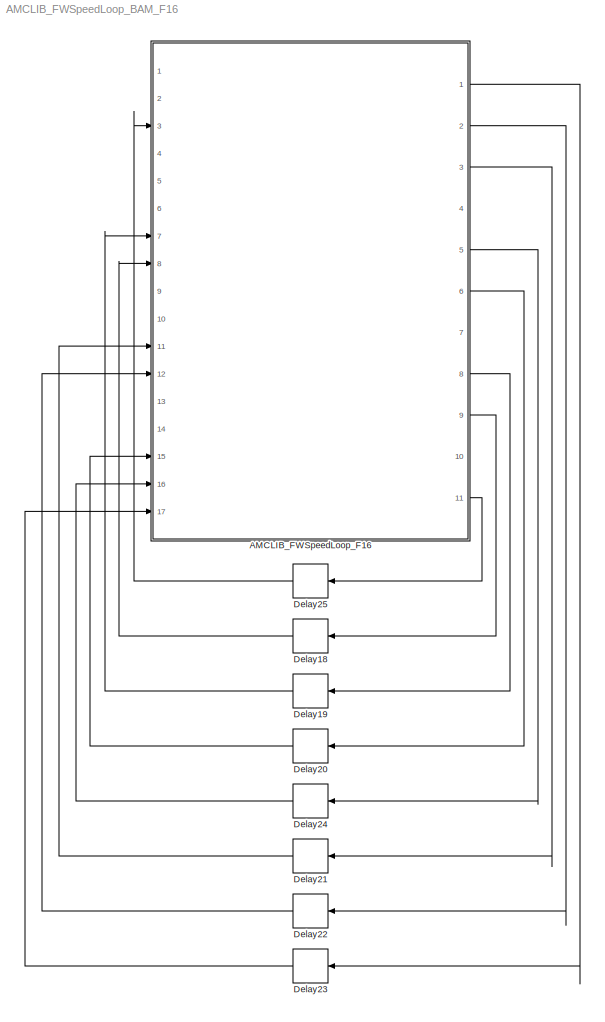
MODEL AMCLIB_FWSpeedLoop_BAM_F16
KIND model
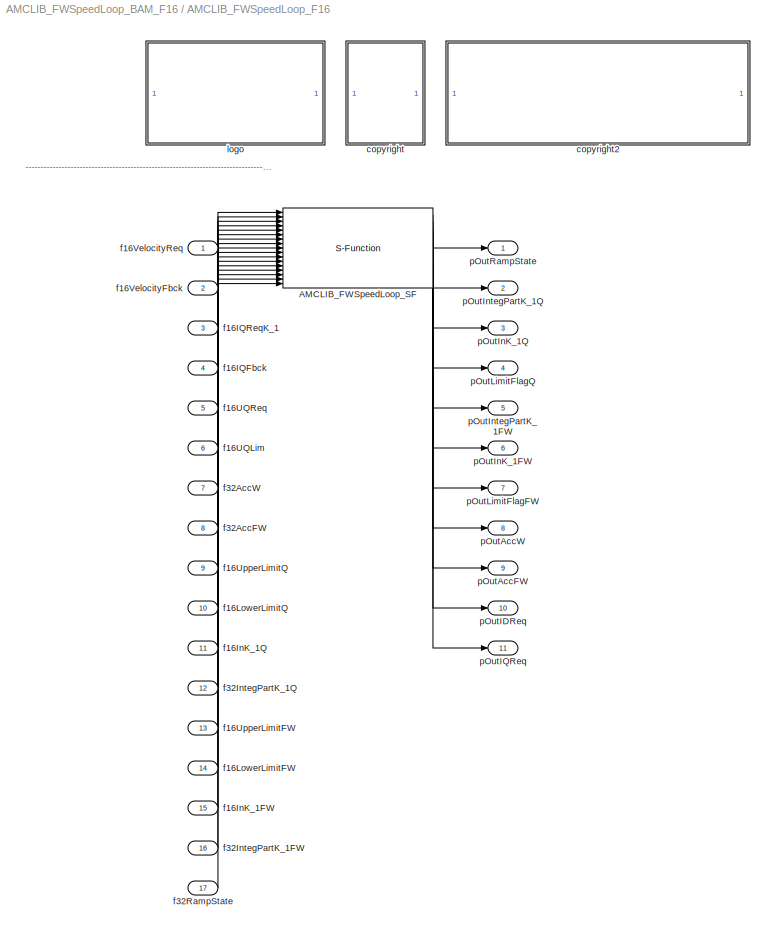
BLOCK [SubSystem] AMCLIB_FWSpeedLoop_F16
  Ports = [17, 11]
  RequestExecContextInheritance = off
  SID = 1
BLOCK [S-Function] AMCLIB_FWSpeedLoop_F16/AMCLIB_FWSpeedLoop_SF
  EnableBusSupport = off
  FunctionName = AMCLIB_FWSpeedLoop_SF_F16
  Parameters = u16NSamplesW,u16NSamplesFW,f16PropGainQ,s16PropGainShiftQ,f16IntegGainQ,s16IntegGainShiftQ,f16PropGainFW,s16PropGainShiftFW,f16IntegGainFW,s16IntegGainShiftFW,f32RampUp,f32RampDown
  Ports = [17, 11]
  SID = 4
BLOCK [SubSystem] AMCLIB_FWSpeedLoop_F16/<copyright redacted>
  Ports = []
  RequestExecContextInheritance = off
  SID = 37
BLOCK [SubSystem] AMCLIB_FWSpeedLoop_F16/copyright2
  Ports = []
  RequestExecContextInheritance = off
  SID = 40
BLOCK [Inport] AMCLIB_FWSpeedLoop_F16/f16IQFbck
  IconDisplay = Port number
  Port = 4
  SID = 8
BLOCK [Inport] AMCLIB_FWSpeedLoop_F16/f16IQReqK_1
  IconDisplay = Port number
  Port = 3
  SID = 7
BLOCK [Inport] AMCLIB_FWSpeedLoop_F16/f16InK_1FW
  IconDisplay = Port number
  Port = 15
  SID = 19
BLOCK [Inport] AMCLIB_FWSpeedLoop_F16/f16InK_1Q
  IconDisplay = Port number
  Port = 11
  SID = 15
BLOCK [Inport] AMCLIB_FWSpeedLoop_F16/f16LowerLimitFW
  IconDisplay = Port number
  Port = 14
  SID = 18
BLOCK [Inport] AMCLIB_FWSpeedLoop_F16/f16LowerLimitQ
  IconDisplay = Port number
  Port = 10
  SID = 14
BLOCK [Inport] AMCLIB_FWSpeedLoop_F16/f16UQLim
  IconDisplay = Port number
  Port = 6
  SID = 10
BLOCK [Inport] AMCLIB_FWSpeedLoop_F16/f16UQReq
  IconDisplay = Port number
  Port = 5
  SID = 9
BLOCK [Inport] AMCLIB_FWSpeedLoop_F16/f16UpperLimitFW
  IconDisplay = Port number
  Port = 13
  SID = 17
BLOCK [Inport] AMCLIB_FWSpeedLoop_F16/f16UpperLimitQ
  IconDisplay = Port number
  Port = 9
  SID = 13
BLOCK [Inport] AMCLIB_FWSpeedLoop_F16/f16VelocityFbck
  IconDisplay = Port number
  Port = 2
  SID = 6
BLOCK [Inport] AMCLIB_FWSpeedLoop_F16/f16VelocityReq
  IconDisplay = Port number
  SID = 5
BLOCK [Inport] AMCLIB_FWSpeedLoop_F16/f32AccFW
  IconDisplay = Port number
  Port = 8
  SID = 12
BLOCK [Inport] AMCLIB_FWSpeedLoop_F16/f32AccW
  IconDisplay = Port number
  Port = 7
  SID = 11
BLOCK [Inport] AMCLIB_FWSpeedLoop_F16/f32IntegPartK_1FW
  IconDisplay = Port number
  Port = 16
  SID = 20
BLOCK [Inport] AMCLIB_FWSpeedLoop_F16/f32IntegPartK_1Q
  IconDisplay = Port number
  Port = 12
  SID = 16
BLOCK [Inport] AMCLIB_FWSpeedLoop_F16/f32RampState
  IconDisplay = Port number
  Port = 17
  SID = 21
BLOCK [SubSystem] AMCLIB_FWSpeedLoop_F16/logo
  Ports = []
  RequestExecContextInheritance = off
  SID = 33
BLOCK [Outport] AMCLIB_FWSpeedLoop_F16/pOutAccFW
  IconDisplay = Port number
  Port = 9
  SID = 30
BLOCK [Outport] AMCLIB_FWSpeedLoop_F16/pOutAccW
  IconDisplay = Port number
  Port = 8
  SID = 29
BLOCK [Outport] AMCLIB_FWSpeedLoop_F16/pOutIDReq
  IconDisplay = Port number
  Port = 10
  SID = 31
BLOCK [Outport] AMCLIB_FWSpeedLoop_F16/pOutIQReq
  IconDisplay = Port number
  Port = 11
  SID = 32
BLOCK [Outport] AMCLIB_FWSpeedLoop_F16/pOutInK_1FW
  IconDisplay = Port number
  Port = 6
  SID = 27
BLOCK [Outport] AMCLIB_FWSpeedLoop_F16/pOutInK_1Q
  IconDisplay = Port number
  Port = 3
  SID = 24
BLOCK [Outport] AMCLIB_FWSpeedLoop_F16/pOutIntegPartK_1FW
  IconDisplay = Port number
  Port = 5
  SID = 26
BLOCK [Outport] AMCLIB_FWSpeedLoop_F16/pOutIntegPartK_1Q
  IconDisplay = Port number
  Port = 2
  SID = 23
BLOCK [Outport] AMCLIB_FWSpeedLoop_F16/pOutLimitFlagFW
  IconDisplay = Port number
  Port = 7
  SID = 28
BLOCK [Outport] AMCLIB_FWSpeedLoop_F16/pOutLimitFlagQ
  IconDisplay = Port number
  Port = 4
  SID = 25
BLOCK [Outport] AMCLIB_FWSpeedLoop_F16/pOutRampState
  IconDisplay = Port number
  SID = 22
BLOCK [Delay] Delay18
  DelayLength = 1
  InitialCondition = 0
  InputPortMap = u0
  Ports = [1, 1]
  SID = 77
BLOCK [Delay] Delay19
  DelayLength = 1
  InitialCondition = 0
  InputPortMap = u0
  Ports = [1, 1]
  SID = 78
BLOCK [Delay] Delay20
  DelayLength = 1
  InitialCondition = 0
  InputPortMap = u0
  Ports = [1, 1]
  SID = 79
BLOCK [Delay] Delay21
  DelayLength = 1
  InitialCondition = 0
  InputPortMap = u0
  Ports = [1, 1]
  SID = 80
BLOCK [Delay] Delay22
  DelayLength = 1
  InitialCondition = 0
  InputPortMap = u0
  Ports = [1, 1]
  SID = 81
BLOCK [Delay] Delay23
  DelayLength = 1
  InitialCondition = 0
  InputPortMap = u0
  Ports = [1, 1]
  SID = 82
BLOCK [Delay] Delay24
  DelayLength = 1
  InitialCondition = 0
  InputPortMap = u0
  Ports = [1, 1]
  SID = 83
BLOCK [Delay] Delay25
  DelayLength = 1
  InitialCondition = 0
  InputPortMap = u0
  Ports = [1, 1]
  SID = 84
ANNOTATION AMCLIB_FWSpeedLoop_F16: ---------------------------------------------------------------------------------------------------------------------------------------------------------------------------------------------------
LINE AMCLIB_FWSpeedLoop_F16/AMCLIB_FWSpeedLoop_SF:1 -> AMCLIB_FWSpeedLoop_F16/pOutRampState:1
LINE AMCLIB_FWSpeedLoop_F16/AMCLIB_FWSpeedLoop_SF:10 -> AMCLIB_FWSpeedLoop_F16/pOutIDReq:1
LINE AMCLIB_FWSpeedLoop_F16/AMCLIB_FWSpeedLoop_SF:11 -> AMCLIB_FWSpeedLoop_F16/pOutIQReq:1
LINE AMCLIB_FWSpeedLoop_F16/AMCLIB_FWSpeedLoop_SF:2 -> AMCLIB_FWSpeedLoop_F16/pOutIntegPartK_1Q:1
LINE AMCLIB_FWSpeedLoop_F16/AMCLIB_FWSpeedLoop_SF:3 -> AMCLIB_FWSpeedLoop_F16/pOutInK_1Q:1
LINE AMCLIB_FWSpeedLoop_F16/AMCLIB_FWSpeedLoop_SF:4 -> AMCLIB_FWSpeedLoop_F16/pOutLimitFlagQ:1
LINE AMCLIB_FWSpeedLoop_F16/AMCLIB_FWSpeedLoop_SF:5 -> AMCLIB_FWSpeedLoop_F16/pOutIntegPartK_1FW:1
LINE AMCLIB_FWSpeedLoop_F16/AMCLIB_FWSpeedLoop_SF:6 -> AMCLIB_FWSpeedLoop_F16/pOutInK_1FW:1
LINE AMCLIB_FWSpeedLoop_F16/AMCLIB_FWSpeedLoop_SF:7 -> AMCLIB_FWSpeedLoop_F16/pOutLimitFlagFW:1
LINE AMCLIB_FWSpeedLoop_F16/AMCLIB_FWSpeedLoop_SF:8 -> AMCLIB_FWSpeedLoop_F16/pOutAccW:1
LINE AMCLIB_FWSpeedLoop_F16/AMCLIB_FWSpeedLoop_SF:9 -> AMCLIB_FWSpeedLoop_F16/pOutAccFW:1
LINE AMCLIB_FWSpeedLoop_F16/f16IQFbck:1 -> AMCLIB_FWSpeedLoop_F16/AMCLIB_FWSpeedLoop_SF:4
LINE AMCLIB_FWSpeedLoop_F16/f16IQReqK_1:1 -> AMCLIB_FWSpeedLoop_F16/AMCLIB_FWSpeedLoop_SF:3
LINE AMCLIB_FWSpeedLoop_F16/f16InK_1FW:1 -> AMCLIB_FWSpeedLoop_F16/AMCLIB_FWSpeedLoop_SF:15
LINE AMCLIB_FWSpeedLoop_F16/f16InK_1Q:1 -> AMCLIB_FWSpeedLoop_F16/AMCLIB_FWSpeedLoop_SF:11
LINE AMCLIB_FWSpeedLoop_F16/f16LowerLimitFW:1 -> AMCLIB_FWSpeedLoop_F16/AMCLIB_FWSpeedLoop_SF:14
LINE AMCLIB_FWSpeedLoop_F16/f16LowerLimitQ:1 -> AMCLIB_FWSpeedLoop_F16/AMCLIB_FWSpeedLoop_SF:10
LINE AMCLIB_FWSpeedLoop_F16/f16UQLim:1 -> AMCLIB_FWSpeedLoop_F16/AMCLIB_FWSpeedLoop_SF:6
LINE AMCLIB_FWSpeedLoop_F16/f16UQReq:1 -> AMCLIB_FWSpeedLoop_F16/AMCLIB_FWSpeedLoop_SF:5
LINE AMCLIB_FWSpeedLoop_F16/f16UpperLimitFW:1 -> AMCLIB_FWSpeedLoop_F16/AMCLIB_FWSpeedLoop_SF:13
LINE AMCLIB_FWSpeedLoop_F16/f16UpperLimitQ:1 -> AMCLIB_FWSpeedLoop_F16/AMCLIB_FWSpeedLoop_SF:9
LINE AMCLIB_FWSpeedLoop_F16/f16VelocityFbck:1 -> AMCLIB_FWSpeedLoop_F16/AMCLIB_FWSpeedLoop_SF:2
LINE AMCLIB_FWSpeedLoop_F16/f16VelocityReq:1 -> AMCLIB_FWSpeedLoop_F16/AMCLIB_FWSpeedLoop_SF:1
LINE AMCLIB_FWSpeedLoop_F16/f32AccFW:1 -> AMCLIB_FWSpeedLoop_F16/AMCLIB_FWSpeedLoop_SF:8
LINE AMCLIB_FWSpeedLoop_F16/f32AccW:1 -> AMCLIB_FWSpeedLoop_F16/AMCLIB_FWSpeedLoop_SF:7
LINE AMCLIB_FWSpeedLoop_F16/f32IntegPartK_1FW:1 -> AMCLIB_FWSpeedLoop_F16/AMCLIB_FWSpeedLoop_SF:16
LINE AMCLIB_FWSpeedLoop_F16/f32IntegPartK_1Q:1 -> AMCLIB_FWSpeedLoop_F16/AMCLIB_FWSpeedLoop_SF:12
LINE AMCLIB_FWSpeedLoop_F16/f32RampState:1 -> AMCLIB_FWSpeedLoop_F16/AMCLIB_FWSpeedLoop_SF:17
LINE AMCLIB_FWSpeedLoop_F16:1 -> Delay23:1
LINE AMCLIB_FWSpeedLoop_F16:11 -> Delay25:1
LINE AMCLIB_FWSpeedLoop_F16:2 -> Delay22:1
LINE AMCLIB_FWSpeedLoop_F16:3 -> Delay21:1
LINE AMCLIB_FWSpeedLoop_F16:5 -> Delay24:1
LINE AMCLIB_FWSpeedLoop_F16:6 -> Delay20:1
LINE AMCLIB_FWSpeedLoop_F16:8 -> Delay19:1
LINE AMCLIB_FWSpeedLoop_F16:9 -> Delay18:1
LINE Delay18:1 -> AMCLIB_FWSpeedLoop_F16:8
LINE Delay19:1 -> AMCLIB_FWSpeedLoop_F16:7
LINE Delay20:1 -> AMCLIB_FWSpeedLoop_F16:15
LINE Delay21:1 -> AMCLIB_FWSpeedLoop_F16:11
LINE Delay22:1 -> AMCLIB_FWSpeedLoop_F16:12
LINE Delay23:1 -> AMCLIB_FWSpeedLoop_F16:17
LINE Delay24:1 -> AMCLIB_FWSpeedLoop_F16:16
LINE Delay25:1 -> AMCLIB_FWSpeedLoop_F16:3
